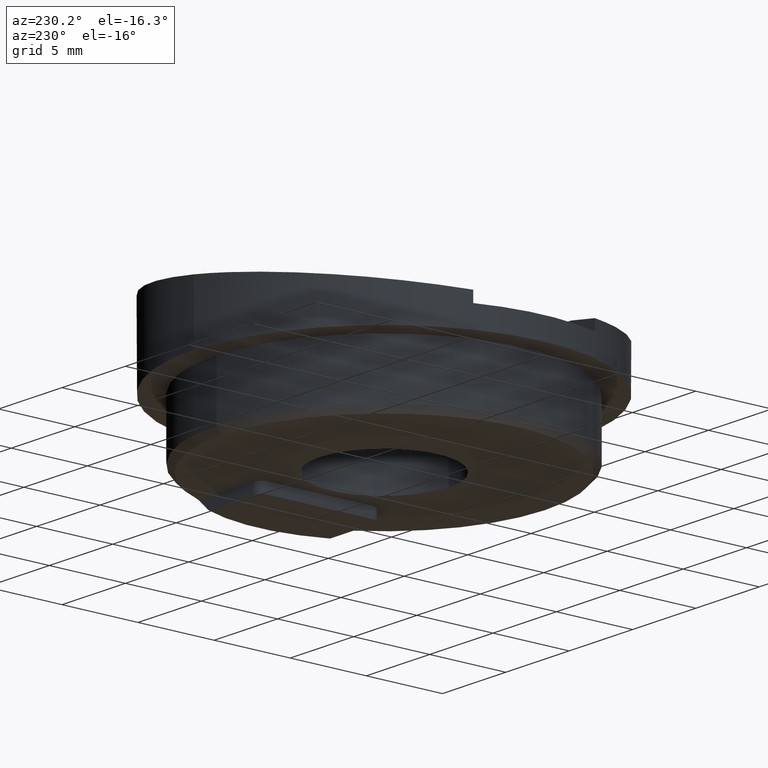
[diagram: clean part render]
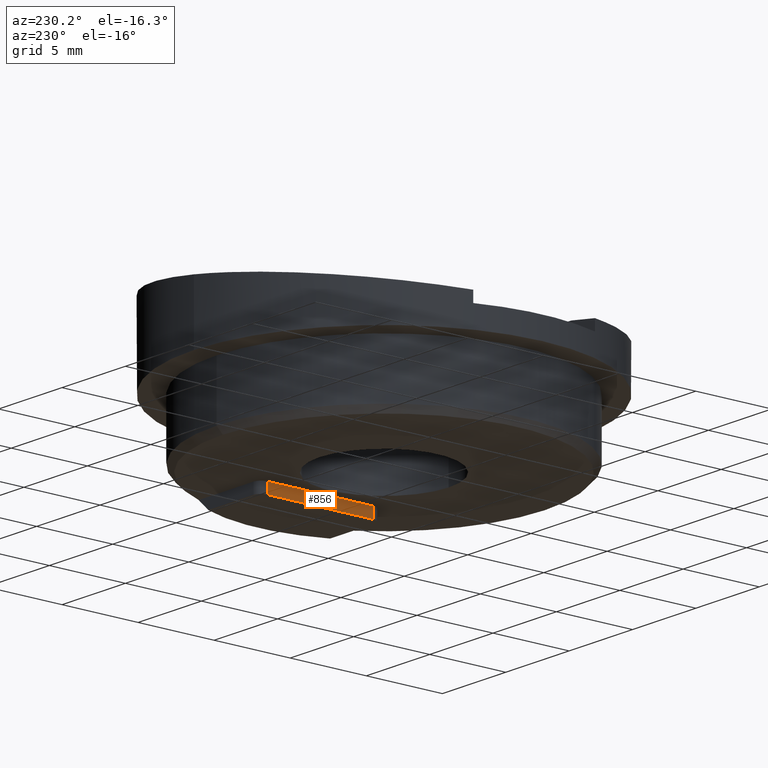
[diagram: same view with one face highlighted and labeled with its STEP entity id]
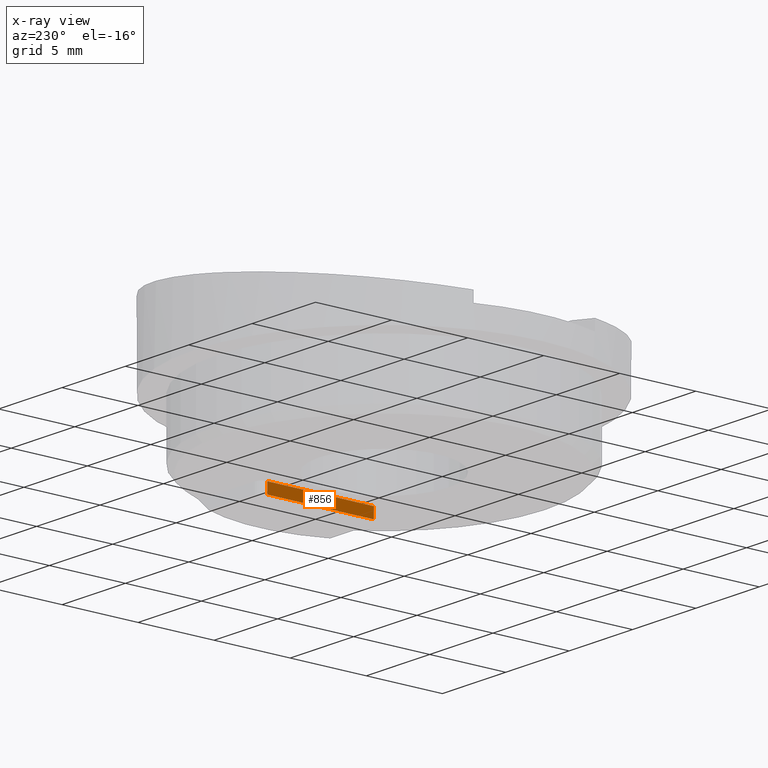
[diagram: x-ray of the same camera — body ghosted, the highlighted face saturated]
A machine part, auxiliary view. The second image highlights one B-rep face of the part: STEP entity #856.
The next image is the same camera in x-ray: the body ghosted, the highlighted face saturated — about 0% of this face is hidden behind the body in this view.
In plain terms, the highlighted planar face has unit normal (1, -0, -0).
Its self-contained STEP definition (entity closure, byte-faithful):
#26 = LINE ( 'NONE', #196, #614 ) ;
#60 = CARTESIAN_POINT ( 'NONE',  ( 0.0000000000000000000, -4.999999999999997300, -3.499999999999998700 ) ) ;
#71 = DIRECTION ( 'NONE',  ( 1.109335647967047900E-031, -1.000000000000000000, 1.239088197126293300E-016 ) ) ;
#187 = CARTESIAN_POINT ( 'NONE',  ( 0.0000000000000000000, -4.999999999999997300, -3.499999999999998700 ) ) ;
#196 = CARTESIAN_POINT ( 'NONE',  ( -0.6999999999999992900, -4.999999999999997300, -3.499999999999998700 ) ) ;
#200 = PLANE ( 'NONE',  #595 ) ;
#201 = CARTESIAN_POINT ( 'NONE',  ( 0.0000000000000000000, -4.999999999999997300, -3.499999999999998700 ) ) ;
#212 = DIRECTION ( 'NONE',  ( -1.000000000000000000, 1.109335647967048500E-031, 1.232595164407831800E-032 ) ) ;
#223 = DIRECTION ( 'NONE',  ( -3.697785493223492800E-032, -1.239088197126293300E-016, -1.000000000000000000 ) ) ;
#227 = LINE ( 'NONE', #252, #994 ) ;
#234 = ORIENTED_EDGE ( 'NONE', *, *, #288, .T. ) ;
#248 = DIRECTION ( 'NONE',  ( -1.000000000000000000, 1.109335647967048500E-031, 1.232595164407831800E-032 ) ) ;
#252 = CARTESIAN_POINT ( 'NONE',  ( 0.0000000000000000000, -4.999999999999997300, 3.500000000000001300 ) ) ;
#288 = EDGE_CURVE ( 'NONE', #550, #467, #26, .T. ) ;
#370 = ORIENTED_EDGE ( 'NONE', *, *, #849, .T. ) ;
#401 = ORIENTED_EDGE ( 'NONE', *, *, #870, .F. ) ;
#431 = DIRECTION ( 'NONE',  ( 3.697785493223492800E-032, 1.239088197126293300E-016, 1.000000000000000000 ) ) ;
#458 = CARTESIAN_POINT ( 'NONE',  ( 0.0000000000000000000, -4.999999999999997300, -3.499999999999998700 ) ) ;
#467 = VERTEX_POINT ( 'NONE', #507 ) ;
#476 = DIRECTION ( 'NONE',  ( 3.697785493223492800E-032, 1.239088197126293300E-016, 1.000000000000000000 ) ) ;
#507 = CARTESIAN_POINT ( 'NONE',  ( -0.6999999999999992900, -4.999999999999997300, 3.500000000000001300 ) ) ;
#550 = VERTEX_POINT ( 'NONE', #899 ) ;
#577 = CARTESIAN_POINT ( 'NONE',  ( 0.0000000000000000000, -4.999999999999997300, 3.500000000000001300 ) ) ;
#595 = AXIS2_PLACEMENT_3D ( 'NONE', #201, #71, #223 ) ;
#614 = VECTOR ( 'NONE', #431, 1000.000000000000000 ) ;
#659 = VERTEX_POINT ( 'NONE', #60 ) ;
#676 = ORIENTED_EDGE ( 'NONE', *, *, #943, .F. ) ;
#710 = VECTOR ( 'NONE', #212, 1000.000000000000000 ) ;
#725 = VERTEX_POINT ( 'NONE', #577 ) ;
#787 = LINE ( 'NONE', #458, #979 ) ;
#849 = EDGE_CURVE ( 'NONE', #659, #550, #963, .T. ) ;
#852 = FACE_OUTER_BOUND ( 'NONE', #910, .T. ) ;
#856 = ADVANCED_FACE ( 'NONE', ( #852 ), #200, .F. ) ;
#870 = EDGE_CURVE ( 'NONE', #725, #467, #227, .T. ) ;
#899 = CARTESIAN_POINT ( 'NONE',  ( -0.6999999999999992900, -4.999999999999997300, -3.499999999999998700 ) ) ;
#910 = EDGE_LOOP ( 'NONE', ( #234, #401, #676, #370 ) ) ;
#943 = EDGE_CURVE ( 'NONE', #659, #725, #787, .T. ) ;
#963 = LINE ( 'NONE', #187, #710 ) ;
#979 = VECTOR ( 'NONE', #476, 1000.000000000000000 ) ;
#994 = VECTOR ( 'NONE', #248, 1000.000000000000000 ) ;